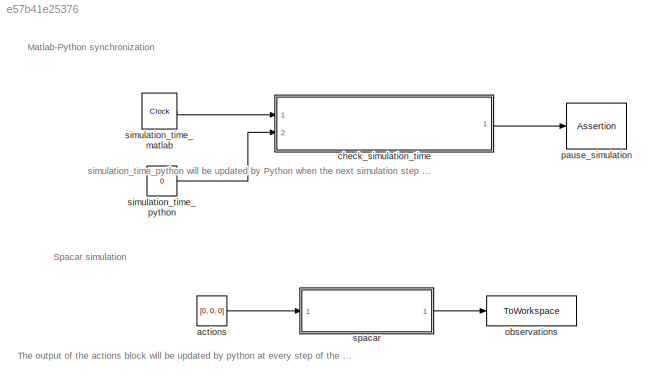
MODEL slx_e57b41e25376
KIND model
CONFIG AbsTol = auto
CONFIG EnableMultiTasking = off
CONFIG FixedStep = auto
CONFIG MaxStep = auto
CONFIG MinStep = auto
CONFIG RelTol = 1e-3
CONFIG SampleTimeConstraint = Unconstrained
CONFIG SolverName = VariableStepAuto
CONFIG StartTime = 0.0
CONFIG StopTime = inf
BLOCK [Constant] actions
  Value = [0, 0, 0]
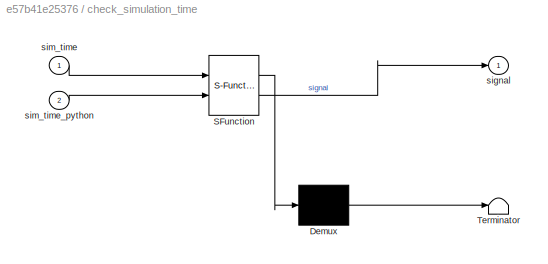
BLOCK [SubSystem] check_simulation_time
  ErrorFcn = Stateflow.Translate.translate
  PermitHierarchicalResolution = ExplicitOnly
  Ports = [2, 1]
  RequestExecContextInheritance = off
  SFBlockType = MATLAB Function
  TreatAsAtomicUnit = on
BLOCK [Demux] check_simulation_time/ Demux 
  Outputs = 1
  Ports = [1, 1]
BLOCK [S-Function] check_simulation_time/ SFunction 
  EnableBusSupport = on
  FunctionName = sf_sfun
  PortCounts = [2 2]
  Ports = [2, 2]
  SFcnIsStateOwnerBlock = off
  SFunctionDeploymentMode = off
  Tag = Stateflow S-Function 2
BLOCK [Terminator] check_simulation_time/ Terminator 
BLOCK [Outport] check_simulation_time/signal
BLOCK [Inport] check_simulation_time/sim_time
BLOCK [Inport] check_simulation_time/sim_time_python
  Port = 2
BLOCK [ToWorkspace] observations
  FixptAsFi = on
  MaxDataPoints = 1
  Ports = [1]
  SampleTime = -1
  VariableName = observations
BLOCK [Assertion] pause_simulation
  AssertionFailFcn = set_param(bdroot, 'SimulationCommand', 'pause')
  StopWhenAssertionFail = off
BLOCK [Clock] simulation_time_matlab
  DisplayTime = on
BLOCK [Constant] simulation_time_python
  Value = 0
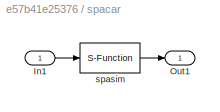
BLOCK [SubSystem] spacar
  AncestorBlock = spacar_lib/SPASIM
  Ports = [1, 1]
  RequestExecContextInheritance = off
BLOCK [Inport] spacar/In1
BLOCK [Outport] spacar/Out1
  InitialOutput = 0
  VectorParamsAs1DForOutWhenUnconnected = off
BLOCK [S-Function] spacar/spasim
  EnableBusSupport = off
  FunctionName = spasim
  Parameters = filename,use_spadraw,output_sbd
  Ports = [1, 1]
  SFcnIsStateOwnerBlock = off
  SFunctionDeploymentMode = off
ANNOTATION (root): Matlab-Python synchronization
ANNOTATION (root): Spacar simulation
ANNOTATION (root): The output of the actions block will be updated by python at every step of the simulation. Because the simulation will be paused after every single step, the observations block will update the appropriate workspace variable with the latest output of the Spacar simulation.
ANNOTATION (root): simulation_time_python will be updated by Python when the next simulation step can be executed. When this happens it will hold the same value as simulation_time_matlab. When these blocks do not have have the same output, the simulation will be paused.
LINE actions:1 -> spacar:1
LINE check_simulation_time:1 -> pause_simulation:1
LINE simulation_time_matlab:1 -> check_simulation_time:1
LINE simulation_time_python:1 -> check_simulation_time:2
LINE spacar:1 -> observations:1
CHART check_simulation_time states=1 transitions=1
  STATE_LABEL 'eML_blk_kernel()'
  STATE_LABEL 'SCRIPT:\nfunction signal = assert_input(sim_time, sim_time_python)\n    if sim_time > sim_time_python\n        signal = 0; % pause sim until python let\'s it continue\n    else if sim_time == sim_time_python\n        signal = 1; % good to go\n    else\n        signal = 0;\n        disp("Warning: Matlab\' simulation is lagging behind Python.")\n    end\nend'
CHART  states=0 transitions=0
